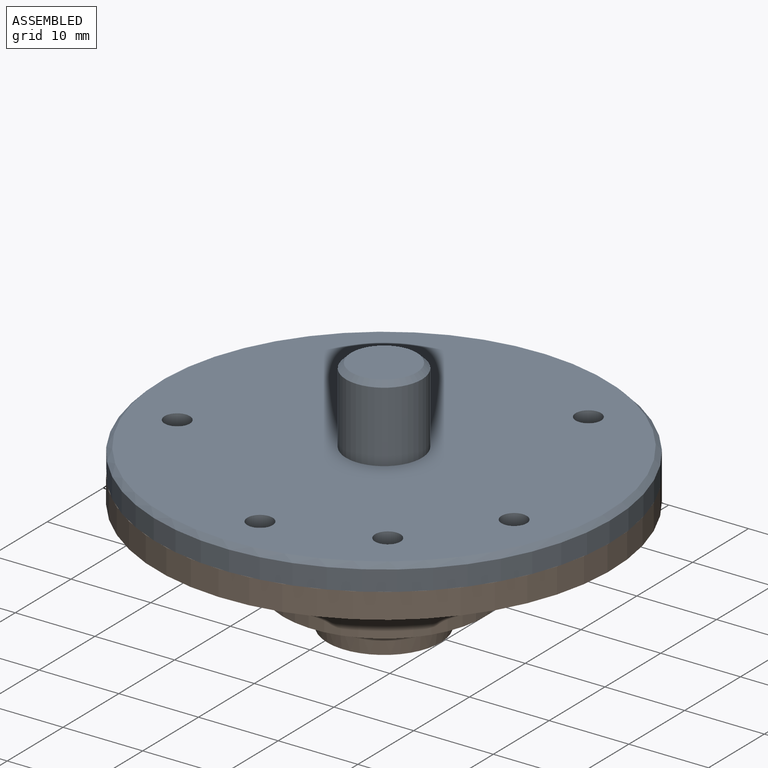
[diagram: assembled view]
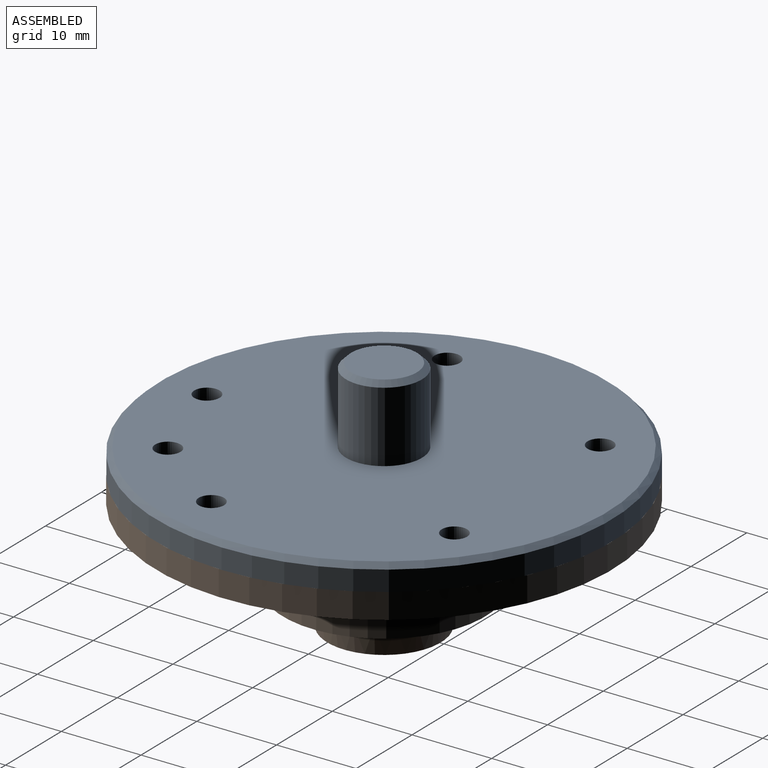
[diagram: assembled view, second angle]
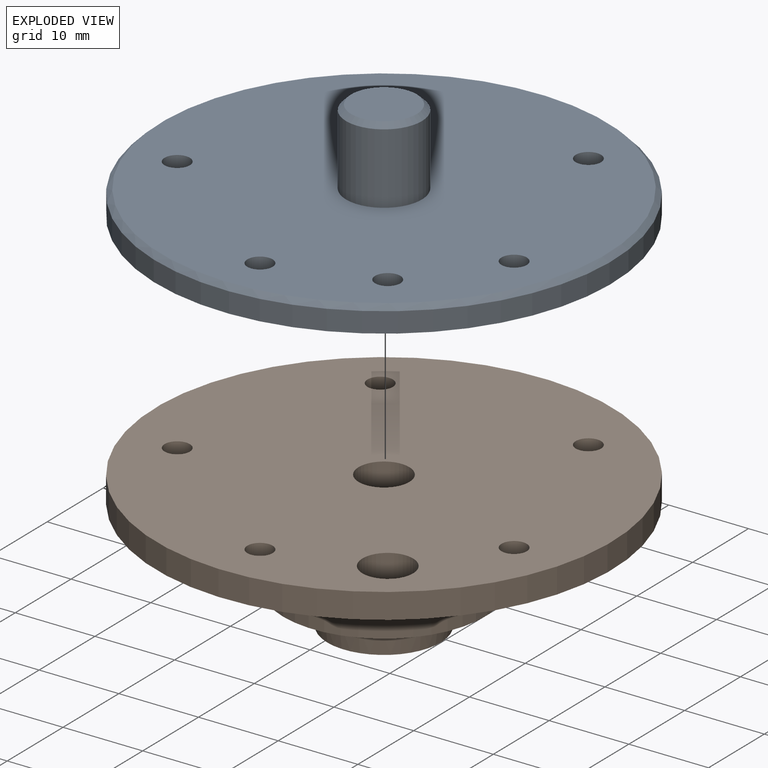
[diagram: exploded view]
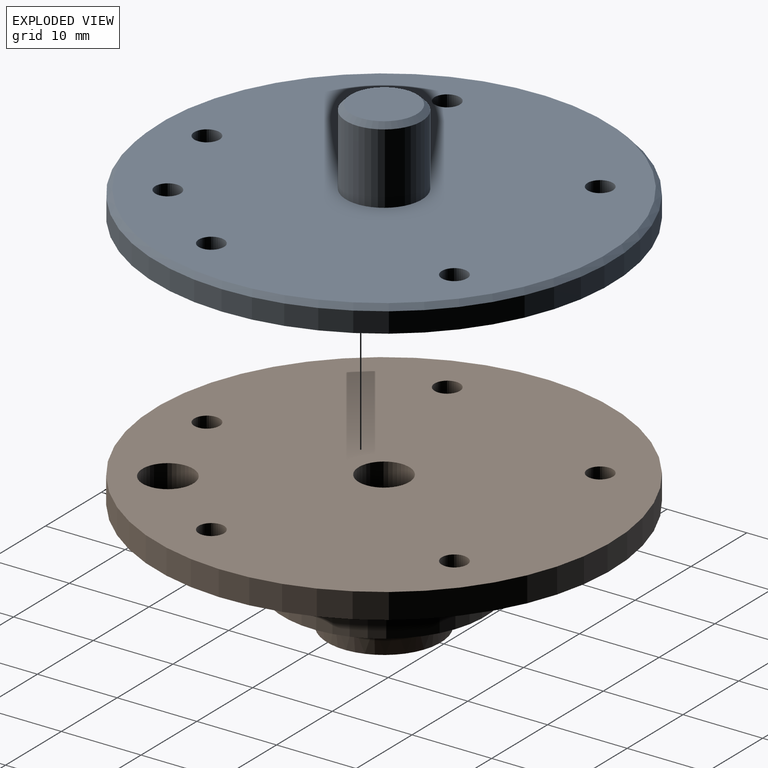
[diagram: exploded view, second angle]
ASSEMBLY  parts=2 mates=3
PART A: 13 faces, bbox 57.2x57.2x12.7 mm
  f0: cylinder r=28.57mm len=57.15mm, axis (0,0,-1), area 456mm2, adj f2,f11
  f1: plane 55.88x55.88mm, normal (0,0,1), area 2333.7mm2, adj f3,f5,f6,f7,f8,f9,f10,f11
  f2: plane 57.15x57.15mm, normal (0,0,-1), area 2517.7mm2, adj f0,f5,f6,f7,f8,f9,f10
  f3: cylinder r=4.76mm len=9.53mm, axis (0,0,-1), area 266mm2, adj f1,f12
  f4: plane 8.26x8.26mm, normal (0,0,1), area 53.5mm2, adj f12
  f5: cylinder r=1.59mm len=3.18mm, axis (0,0,-1), area 31.7mm2, adj f1,f2
  f6: cylinder r=1.59mm len=3.18mm, axis (0,0,-1), area 31.7mm2, adj f1,f2
  f7: cylinder r=1.59mm len=3.18mm, axis (0,0,-1), area 31.7mm2, adj f1,f2
  f8: cylinder r=1.59mm len=3.18mm, axis (0,0,-1), area 31.7mm2, adj f1,f2
  f9: cylinder r=1.59mm len=3.18mm, axis (0,0,-1), area 31.7mm2, adj f1,f2
  f10: cylinder r=1.59mm len=3.18mm, axis (0,0,-1), area 31.7mm2, adj f1,f2
  f11: cone r=27.94mm half-angle=45deg, axis (0,0,-1), area 159.4mm2, adj f0,f1
  f12: cone r=4.13mm half-angle=45deg, axis (0,0,-1), area 25.1mm2, adj f3,f4
PART B: 16 faces, bbox 57.2x57.2x17.1 mm
  f0: plane 22.23x22.23mm, normal (0,0,1), area 129mm2, adj f4,f13
  f1: cylinder r=28.57mm len=57.15mm, axis (0,0,-1), area 570mm2, adj f2,f3
  f2: plane 57.15x57.15mm, normal (0,0,1), area 1987.2mm2, adj f1,f6,f7,f8,f9,f10,f11,f14
  f3: plane 57.15x57.15mm, normal (0,0,-1), area 2462.3mm2, adj f1,f6,f7,f8,f9,f10,f11,f12
  f4: cone r=9.53mm half-angle=8deg, axis (0,0,-1), area 717.7mm2, adj f0,f5
  f5: plane 14.23x14.23mm, normal (0,0,1), area 127.4mm2, adj f4,f12
  f6: cylinder r=1.59mm len=3.18mm, axis (0,0,-1), area 31.7mm2, adj f2,f3
  f7: cylinder r=1.59mm len=3.18mm, axis (0,0,-1), area 31.7mm2, adj f2,f3
  f8: cylinder r=1.59mm len=3.18mm, axis (0,0,-1), area 31.7mm2, adj f2,f3
  f9: cylinder r=1.59mm len=3.18mm, axis (0,0,-1), area 31.7mm2, adj f2,f3
  f10: cylinder r=3.17mm len=6.35mm, axis (0,0,-1), area 63.3mm2, adj f2,f3
  f11: cylinder r=1.59mm len=3.18mm, axis (0,0,-1), area 31.7mm2, adj f2,f3
  f12: cylinder r=3.17mm len=17.15mm, axis (0,0,-1), area 342mm2, adj f3,f5
  f13: cylinder r=11.11mm len=22.23mm, axis (0,0,-1), area 665.1mm2, adj f0,f15
  f14: cylinder r=12.7mm len=25.4mm, axis (0,0,-1), area 760.1mm2, adj f2,f15
  f15: plane 25.4x25.4mm, normal (0,0,1), area 118.8mm2, adj f13,f14
PLACE A rot(axis=(0,0,1),36deg) t=(-30.25,-50.68,-80.51)mm fixed
PLACE B rot(axis=(0.31,-0.95,0),180deg) t=(-30.25,-50.68,-80.51)mm
MATE cylindrical B.f10 <-> A.f5  axis (0,0,-1) through (-17.18,-68.66,-83.68)mm
MATE cylindrical B.f4 <-> A.f3  axis (0,0,-1) through (-30.25,-50.68,-97.65)mm
MATE planar B.f3 <-> A.f2  axis (0,0,1) through (-30.42,-50.45,-80.51)mm
